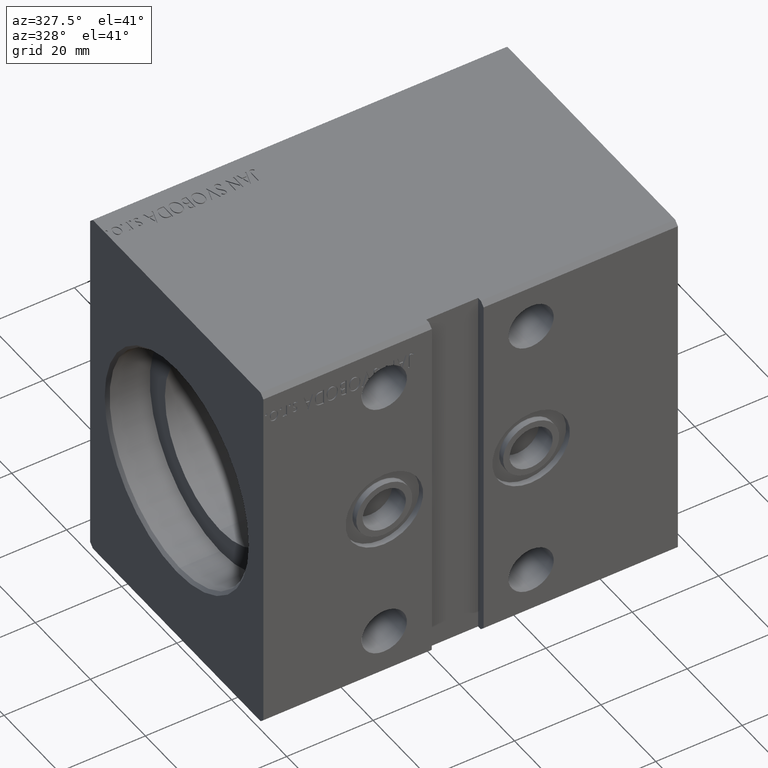
[diagram: clean part render]
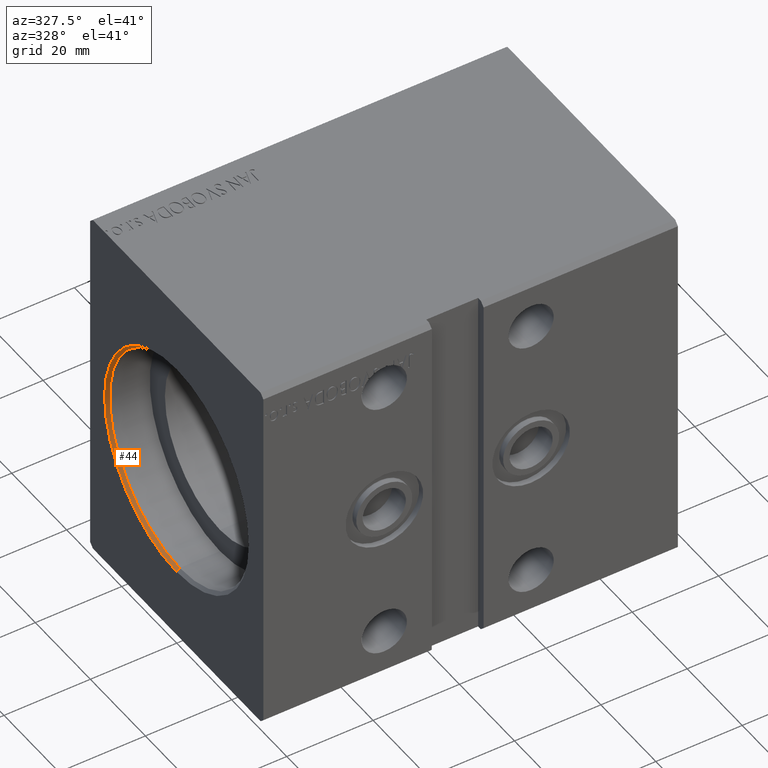
[diagram: same view with one face highlighted and labeled with its STEP entity id]
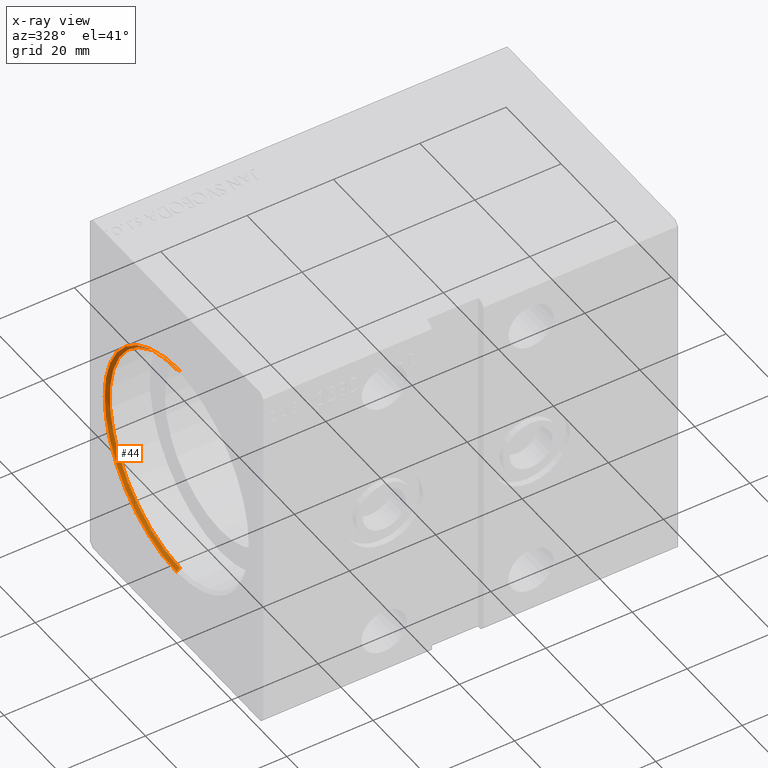
[diagram: x-ray of the same camera — body ghosted, the highlighted face saturated]
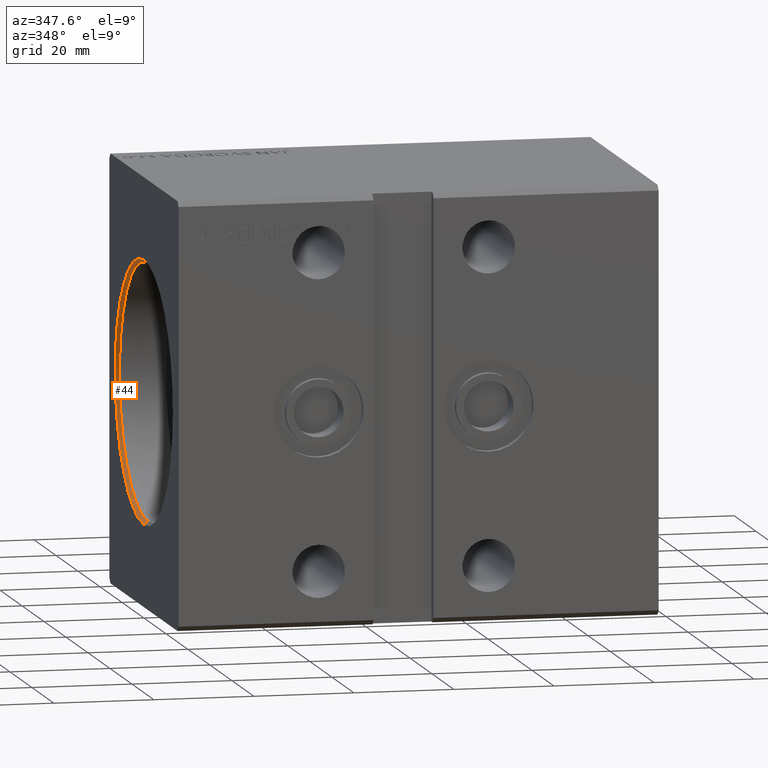
[diagram: same view with one face highlighted and labeled with its STEP entity id]
A machine part, auxiliary view. The second image highlights one B-rep face of the part: STEP entity #44.
The next image is the same camera in x-ray: the body ghosted, the highlighted face saturated — about 0% of this face is hidden behind the body in this view.
A second angle (auxiliary view) of the same face is appended — the face is thin or edge-on in the first view.
In plain terms, the highlighted conical surface has half-angle 45 deg.
Its self-contained STEP definition (entity closure, byte-faithful):
#44 = ADVANCED_FACE ( 'NONE', ( #16903 ), #36232, .F. ) ;
#416 = DIRECTION ( 'NONE',  ( -1.000000000000000000, 0.000000000000000000, 0.000000000000000000 ) ) ;
#682 = DIRECTION ( 'NONE',  ( -1.000000000000000000, 0.000000000000000000, 0.000000000000000000 ) ) ;
#3304 = CARTESIAN_POINT ( 'NONE',  ( 0.6999999999999784173, 3.122849337825750222E-15, -25.50000000000000000 ) ) ;
#7851 = DIRECTION ( 'NONE',  ( 1.000000000000000000, 0.000000000000000000, 0.000000000000000000 ) ) ;
#9632 = VECTOR ( 'NONE', #10569, 1000.000000000000000 ) ;
#10569 = DIRECTION ( 'NONE',  ( -0.7071067811865422437, 8.659560562354996953E-17, -0.7071067811865527908 ) ) ;
#10721 = VERTEX_POINT ( 'NONE', #3304 ) ;
#10770 = LINE ( 'NONE', #17357, #9632 ) ;
#13697 = ORIENTED_EDGE ( 'NONE', *, *, #17523, .F. ) ;
#13907 = CARTESIAN_POINT ( 'NONE',  ( 0.000000000000000000, 0.000000000000000000, 26.19999999999998863 ) ) ;
#14350 = CIRCLE ( 'NONE', #30777, 25.50000000000000000 ) ;
#14879 = LINE ( 'NONE', #23507, #24117 ) ;
#15492 = VERTEX_POINT ( 'NONE', #16365 ) ;
#15603 = AXIS2_PLACEMENT_3D ( 'NONE', #30065, #7851, #29452 ) ;
#16365 = CARTESIAN_POINT ( 'NONE',  ( 0.6999999999999784173, 0.000000000000000000, 25.50000000000000000 ) ) ;
#16541 = EDGE_CURVE ( 'NONE', #10721, #24505, #10770, .T. ) ;
#16903 = FACE_OUTER_BOUND ( 'NONE', #29537, .T. ) ;
#17357 = CARTESIAN_POINT ( 'NONE',  ( 0.6999999999999784173, 3.122849337825750222E-15, -25.50000000000000000 ) ) ;
#17523 = EDGE_CURVE ( 'NONE', #24505, #29484, #19525, .T. ) ;
#17877 = ORIENTED_EDGE ( 'NONE', *, *, #21660, .T. ) ;
#18492 = AXIS2_PLACEMENT_3D ( 'NONE', #35432, #682, #35228 ) ;
#19525 = CIRCLE ( 'NONE', #15603, 26.19999999999998863 ) ;
#21660 = EDGE_CURVE ( 'NONE', #15492, #29484, #14879, .T. ) ;
#23293 = CARTESIAN_POINT ( 'NONE',  ( 0.000000000000000000, 3.208574613766063722E-15, -26.19999999999998863 ) ) ;
#23507 = CARTESIAN_POINT ( 'NONE',  ( 0.6999999999999784173, 0.000000000000000000, 25.50000000000000000 ) ) ;
#24117 = VECTOR ( 'NONE', #39341, 1000.000000000000000 ) ;
#24505 = VERTEX_POINT ( 'NONE', #23293 ) ;
#28185 = DIRECTION ( 'NONE',  ( 0.000000000000000000, 0.000000000000000000, -1.000000000000000000 ) ) ;
#29452 = DIRECTION ( 'NONE',  ( 0.000000000000000000, 0.000000000000000000, -1.000000000000000000 ) ) ;
#29484 = VERTEX_POINT ( 'NONE', #13907 ) ;
#29537 = EDGE_LOOP ( 'NONE', ( #31893, #38786, #17877, #13697 ) ) ;
#30065 = CARTESIAN_POINT ( 'NONE',  ( 0.000000000000000000, 0.000000000000000000, 0.000000000000000000 ) ) ;
#30777 = AXIS2_PLACEMENT_3D ( 'NONE', #40323, #416, #28185 ) ;
#31893 = ORIENTED_EDGE ( 'NONE', *, *, #16541, .F. ) ;
#34764 = EDGE_CURVE ( 'NONE', #15492, #10721, #14350, .T. ) ;
#35228 = DIRECTION ( 'NONE',  ( 0.000000000000000000, 0.000000000000000000, 1.000000000000000000 ) ) ;
#35432 = CARTESIAN_POINT ( 'NONE',  ( 0.6999999999999784173, 0.000000000000000000, 0.000000000000000000 ) ) ;
#36232 = CONICAL_SURFACE ( 'NONE', #18492, 25.50000000000000000, 0.7853981633974557175 ) ;
#38786 = ORIENTED_EDGE ( 'NONE', *, *, #34764, .F. ) ;
#39341 = DIRECTION ( 'NONE',  ( -0.7071067811865422437, 0.000000000000000000, 0.7071067811865527908 ) ) ;
#40323 = CARTESIAN_POINT ( 'NONE',  ( 0.6999999999999784173, 0.000000000000000000, 0.000000000000000000 ) ) ;